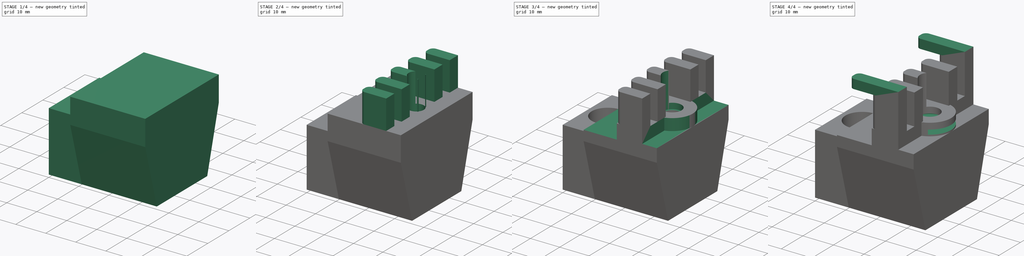
[diagram: build sequence overview — one tinted view per stage of 4, left to right]
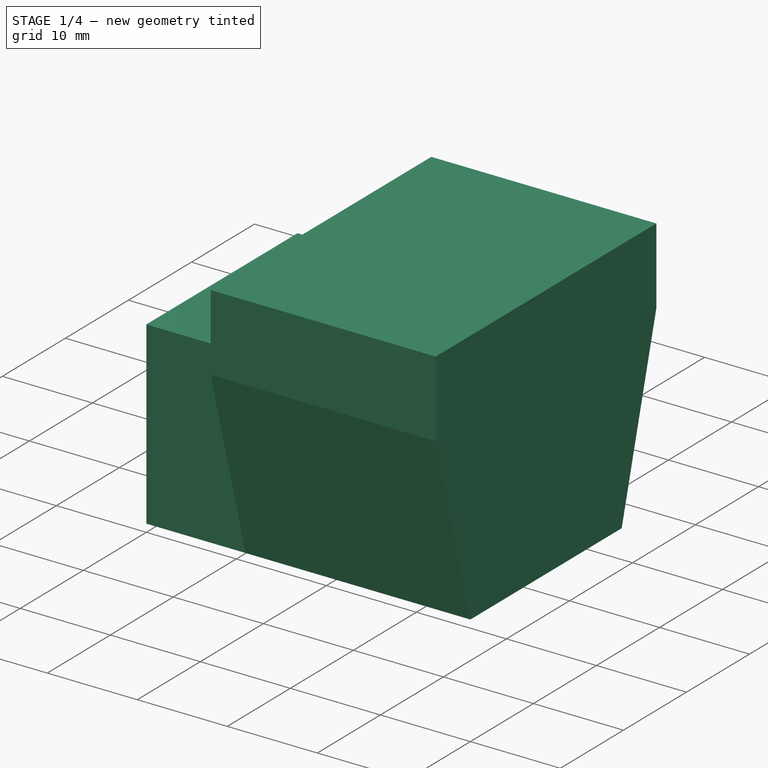
[diagram: stage 1 of 4 — iso view after this stage's code; geometry added in this stage tinted green]
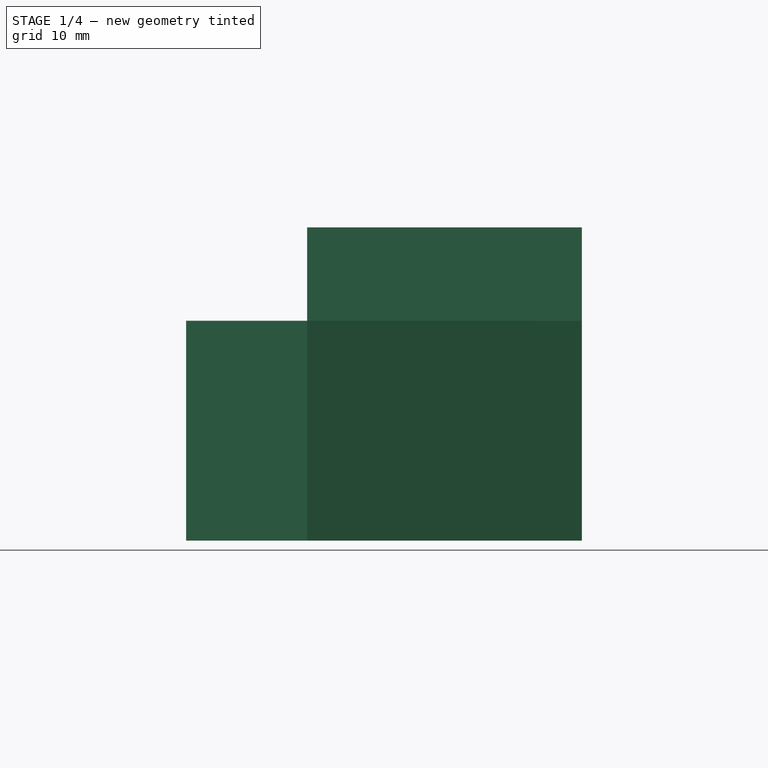
[diagram: stage 1 of 4 — front view after this stage's code; geometry added in this stage tinted green]
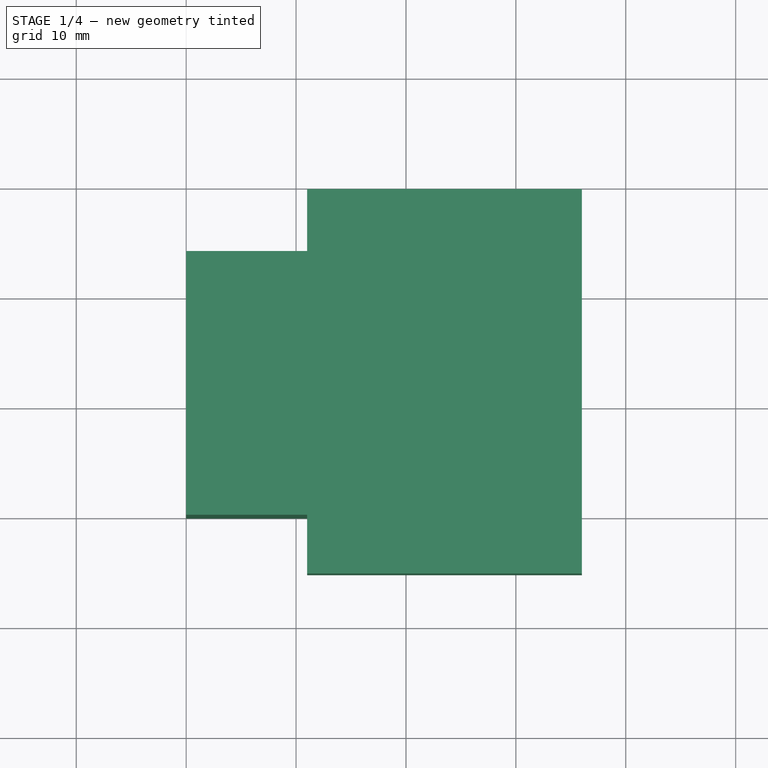
[diagram: stage 1 of 4 — top view after this stage's code; geometry added in this stage tinted green]
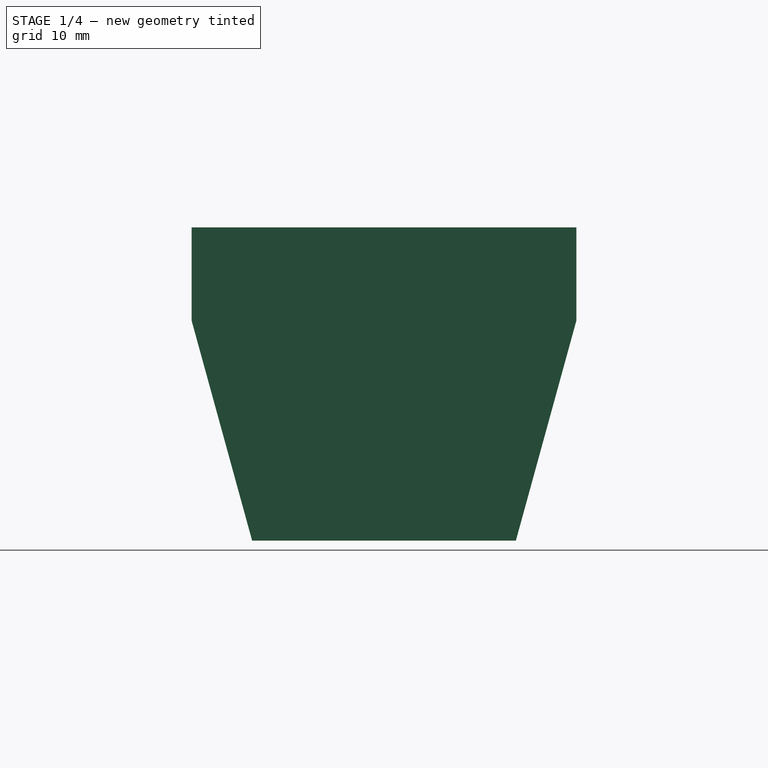
[diagram: stage 1 of 4 — right view after this stage's code; geometry added in this stage tinted green]
FCSTD DOCUMENT  (FreeCAD 1.0R)
Label: badminton_racket_stringing_holder
License: All rights reserved
LicenseURL: https://en.wikipedia.org/wiki/All_rights_reserved
objects: Sketcher::SketchObject×10, PartDesign::Pocket×6, PartDesign::Pad×4, PartDesign::Body×1
note: 51 computed .brp shape members not serialized (recipe doc carries the construction recipe); baked Part::Feature solids carry a one-line shape summary decoded from their .brp

FEATURE [Sketcher::SketchObject] Sketch
  ArcFitTolerance = 1e-06
  AttachmentSupport = -> [XY_Plane]
  FullyConstrained = true
  MakeInternals = false
  MapMode = 5
  sketch-geometry (4):
    g0: LineSegment StartX=0 StartY=0 StartZ=0 EndX=36 EndY=0 EndZ=0
    g1: LineSegment StartX=36 StartY=0 StartZ=0 EndX=36 EndY=24 EndZ=0
    g2: LineSegment StartX=36 StartY=24 StartZ=0 EndX=0 EndY=24 EndZ=0
    g3: LineSegment StartX=0 StartY=24 StartZ=0 EndX=0 EndY=0 EndZ=0
  constraints (11):
    c: Coincident(g0,g1)
    c: Coincident(g1,g2)
    c: Coincident(g2,g3)
    c: Coincident(g3,g0)
    c: Horizontal(g0)
    c: Horizontal(g2)
    c: Vertical(g1)
    c: Vertical(g3)
    c: Coincident(g0,g-1)
    c: DistanceX(g2,g2) = 36
    c: DistanceY(g1,g1) = 24
FEATURE [PartDesign::Pad] Pad
  Direction = (0,0,1)
  Length = 20
  Length2 = 10
  Profile = -> Sketch
  ReferenceAxis = -> Sketch [N_Axis]
  Refine = true
  Suppressed = false
  Type = 0
FEATURE [Sketcher::SketchObject] Sketch001
  ArcFitTolerance = 1e-06
  AttachmentSupport = -> [Pad]
  ExternalGeometry = -> [Pad]
  FullyConstrained = true
  MakeInternals = false
  MapMode = 5
  Placement = pos=(36,0,0) rot=(0.57735,0.57735,0.57735;2.0944rad)
  sketch-geometry (10):
    g0: LineSegment StartX=0 StartY=0 StartZ=0 EndX=-5.5 EndY=20 EndZ=0
    g1: LineSegment StartX=-5.5 StartY=20 StartZ=0 EndX=-5.5 EndY=28.5 EndZ=0
    g2: LineSegment StartX=-5.5 StartY=28.5 StartZ=0 EndX=29.5 EndY=28.5 EndZ=0
    g3: LineSegment StartX=29.5 StartY=28.5 StartZ=0 EndX=29.5 EndY=20 EndZ=0
    g4: LineSegment StartX=29.5 StartY=20 StartZ=0 EndX=24 EndY=0 EndZ=0
    g5: LineSegment StartX=24 StartY=0 StartZ=0 EndX=24 EndY=20 EndZ=0
    g6: LineSegment StartX=24 StartY=20 StartZ=0 EndX=0 EndY=20 EndZ=0
    g7: LineSegment StartX=0 StartY=20 StartZ=0 EndX=0 EndY=0 EndZ=0
    g8: LineSegment [constr] StartX=0 StartY=20 StartZ=0 EndX=-5.5 EndY=20 EndZ=0
    g9: LineSegment [constr] StartX=24 StartY=20 StartZ=0 EndX=29.5 EndY=20 EndZ=0
  constraints (25):
    c: Coincident(g0,g-1)
    c: Coincident(g0,g1)
    c: Vertical(g1)
    c: Coincident(g1,g2)
    c: Horizontal(g2)
    c: Coincident(g2,g3)
    c: Vertical(g3)
    c: Coincident(g3,g4)
    c: Coincident(g4,g-3)
    c: Coincident(g4,g5)
    c: Coincident(g5,g-4)
    c: Coincident(g5,g6)
    c: PointOnObject(g6,g-2)
    c: Horizontal(g6)
    c: Coincident(g6,g7)
    c: Coincident(g7,g0)
    c: Coincident(g8,g6)
    c: Coincident(g8,g0)
    c: Horizontal(g8)
    c: Coincident(g3,g9)
    c: Horizontal(g9)
    c: Equal(g9,g8)
    c: DistanceX(g2,g2) = 35
    c: DistanceY(g3,g3) = 8.5
    c: Coincident(g5,g9)
FEATURE [PartDesign::Pad] Pad001
  BaseFeature = -> Pad
  Direction = (1,0,0)
  Length = 25
  Length2 = 10
  Profile = -> Sketch001
  ReferenceAxis = -> Sketch001 [N_Axis]
  Refine = true
  Reversed = true
  Suppressed = false
  Type = 0
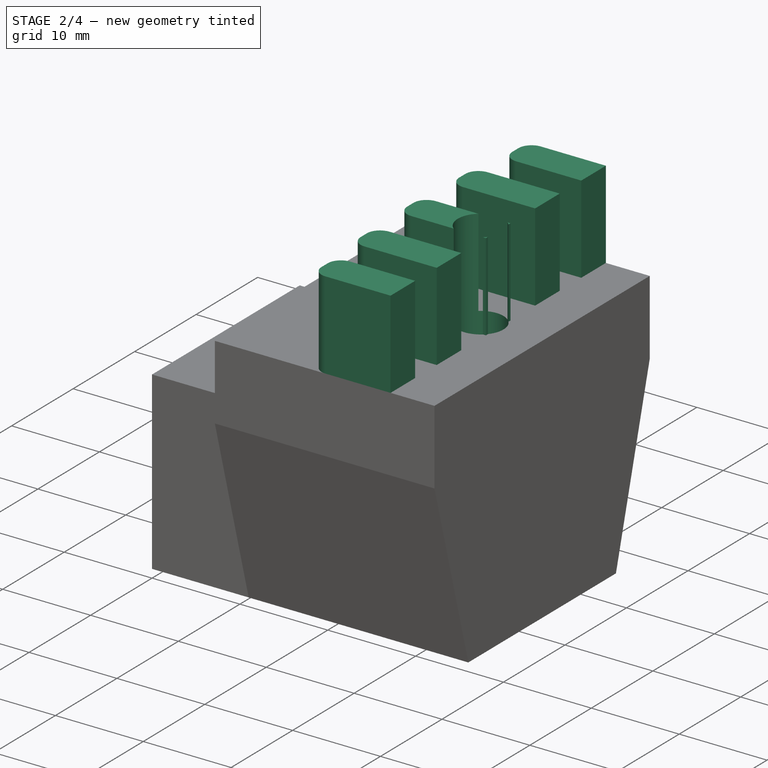
[diagram: stage 2 of 4 — iso view after this stage's code; geometry added in this stage tinted green]
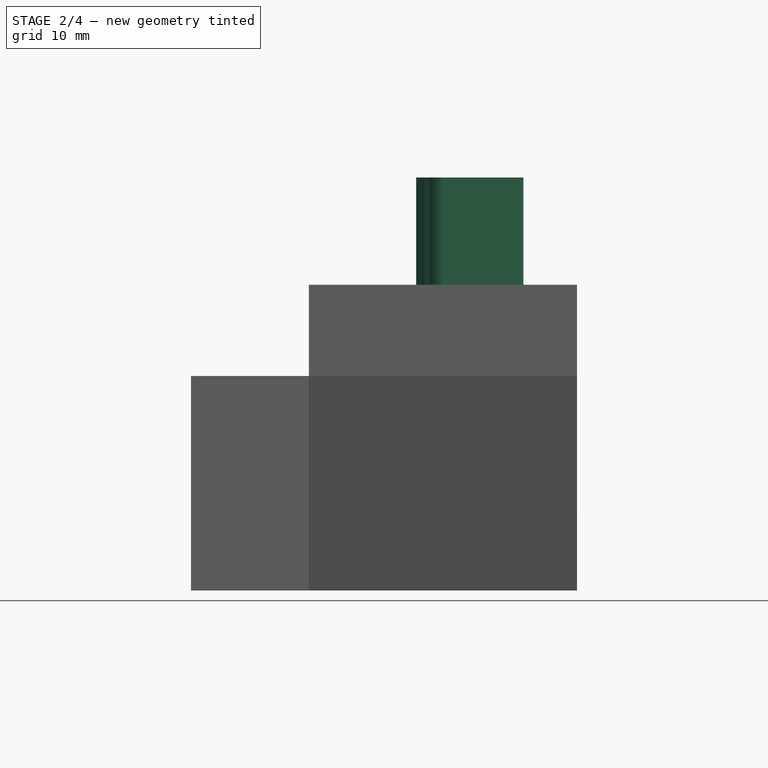
[diagram: stage 2 of 4 — front view after this stage's code; geometry added in this stage tinted green]
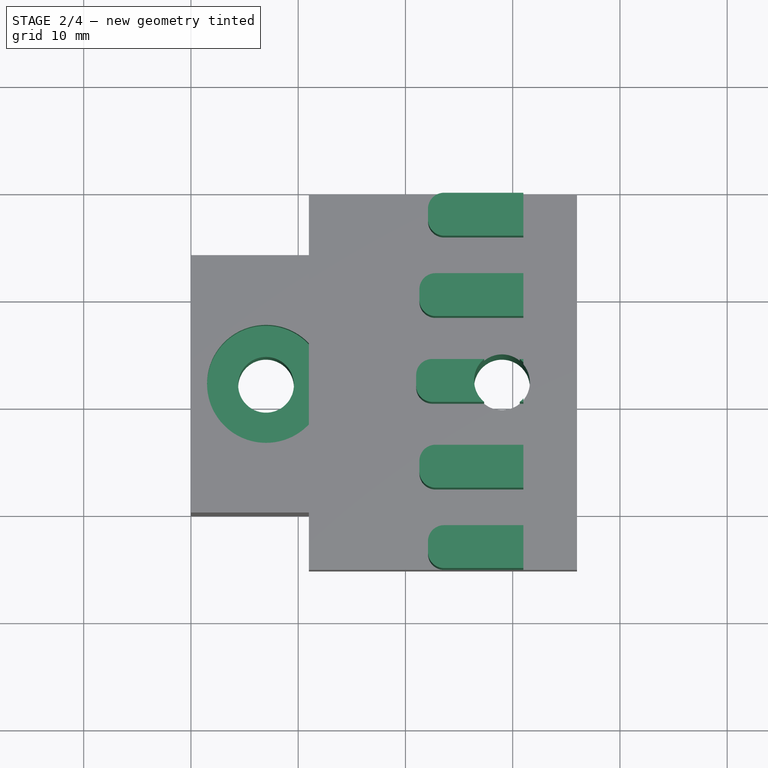
[diagram: stage 2 of 4 — top view after this stage's code; geometry added in this stage tinted green]
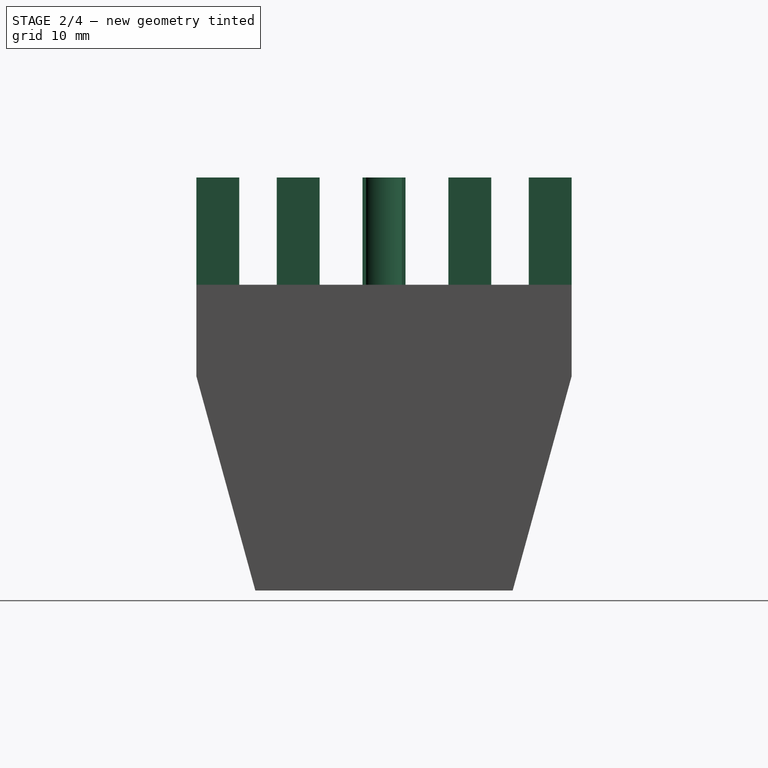
[diagram: stage 2 of 4 — right view after this stage's code; geometry added in this stage tinted green]
FEATURE [Sketcher::SketchObject] Sketch002
  ArcFitTolerance = 1e-06
  AttachmentSupport = -> [Pad001]
  ExternalGeometry = -> [Pad001]
  FullyConstrained = true
  MakeInternals = false
  MapMode = 5
  Placement = pos=(0,0,28.5) rot=(0,0,1;0rad)
  sketch-geometry (47):
    g0: LineSegment StartX=21 StartY=12.5 StartZ=0 EndX=21 EndY=11.5 EndZ=0
    g1: LineSegment StartX=22.5 StartY=10 StartZ=0 EndX=31 EndY=10 EndZ=0
    g2: LineSegment StartX=31 StartY=10 StartZ=0 EndX=31 EndY=14 EndZ=0
    g3: LineSegment StartX=31 StartY=14 StartZ=0 EndX=22.5 EndY=14 EndZ=0
    g4: ArcOfCircle CenterX=22.5 CenterY=12.5 CenterZ=0 NormalX=0 NormalY=0 NormalZ=1 AngleXU=0 Radius=1.5 StartAngle=1.5708 EndAngle=3.14159
    g5: ArcOfCircle CenterX=22.5 CenterY=11.5 CenterZ=0 NormalX=0 NormalY=0 NormalZ=1 AngleXU=0 Radius=1.5 StartAngle=3.14159 EndAngle=4.71239
    g6: GeomPoint [constr] X=21 Y=14 Z=0
    g7: GeomPoint [constr] X=31 Y=10 Z=0
    g8: LineSegment [constr] StartX=22.5 StartY=14 StartZ=0 EndX=22.5 EndY=29.5 EndZ=0
    g9: LineSegment [constr] StartX=22.5 StartY=10 StartZ=0 EndX=22.5 EndY=-5.5 EndZ=0
    g10: LineSegment StartX=21.3 StartY=20.5 StartZ=0 EndX=21.3 EndY=19.5 EndZ=0
    g11: LineSegment StartX=22.8 StartY=18 StartZ=0 EndX=31 EndY=18 EndZ=0
    g12: LineSegment StartX=31 StartY=18 StartZ=0 EndX=31 EndY=22 EndZ=0
    g13: LineSegment StartX=31 StartY=22 StartZ=0 EndX=22.8 EndY=22 EndZ=0
    g14: ArcOfCircle CenterX=22.8 CenterY=20.5 CenterZ=0 NormalX=0 NormalY=0 NormalZ=1 AngleXU=0 Radius=1.5 StartAngle=1.5708 EndAngle=3.14159
    g15: ArcOfCircle CenterX=22.8 CenterY=19.5 CenterZ=0 NormalX=0 NormalY=0 NormalZ=1 AngleXU=0 Radius=1.5 StartAngle=3.14159 EndAngle=4.71239
    g16: GeomPoint [constr] X=21.3 Y=22 Z=0
    g17: GeomPoint [constr] X=31 Y=18 Z=0
    g18: LineSegment StartX=21.3 StartY=4.5 StartZ=0 EndX=21.3 EndY=3.5 EndZ=0
    g19: LineSegment StartX=22.8 StartY=2 StartZ=0 EndX=31 EndY=2 EndZ=0
    g20: LineSegment StartX=31 StartY=2 StartZ=0 EndX=31 EndY=6 EndZ=0
    g21: LineSegment StartX=31 StartY=6 StartZ=0 EndX=22.8 EndY=6 EndZ=0
    g22: ArcOfCircle CenterX=22.8 CenterY=4.5 CenterZ=0 NormalX=0 NormalY=0 NormalZ=1 AngleXU=0 Radius=1.5 StartAngle=1.5708 EndAngle=3.14159
    g23: ArcOfCircle CenterX=22.8 CenterY=3.5 CenterZ=0 NormalX=0 NormalY=0 NormalZ=1 AngleXU=0 Radius=1.5 StartAngle=3.14159 EndAngle=4.71239
    g24: GeomPoint [constr] X=21.3 Y=6 Z=0
    g25: GeomPoint [constr] X=31 Y=2 Z=0
    g26: LineSegment StartX=22.1 StartY=28 StartZ=0 EndX=22.1 EndY=27 EndZ=0
    g27: LineSegment StartX=23.6 StartY=25.5 StartZ=0 EndX=31 EndY=25.5 EndZ=0
    g28: LineSegment StartX=31 StartY=25.5 StartZ=0 EndX=31 EndY=29.5 EndZ=0
    g29: LineSegment StartX=31 StartY=29.5 StartZ=0 EndX=23.6 EndY=29.5 EndZ=0
    g30: ArcOfCircle CenterX=23.6 CenterY=28 CenterZ=0 NormalX=0 NormalY=0 NormalZ=1 AngleXU=0 Radius=1.5 StartAngle=1.5708 EndAngle=3.14159
    g31: ArcOfCircle CenterX=23.6 CenterY=27 CenterZ=0 NormalX=0 NormalY=0 NormalZ=1 AngleXU=0 Radius=1.5 StartAngle=3.14159 EndAngle=4.71239
    g32: GeomPoint [constr] X=22.1 Y=29.5 Z=0
    g33: GeomPoint [constr] X=31 Y=25.5 Z=0
    g34: LineSegment StartX=22.1 StartY=-3 StartZ=0 EndX=22.1 EndY=-4 EndZ=0
    g35: LineSegment StartX=23.6 StartY=-5.5 StartZ=0 EndX=31 EndY=-5.5 EndZ=0
    g36: LineSegment StartX=31 StartY=-5.5 StartZ=0 EndX=31 EndY=-1.5 EndZ=0
    g37: LineSegment StartX=31 StartY=-1.5 StartZ=0 EndX=23.6 EndY=-1.5 EndZ=0
    g38: ArcOfCircle CenterX=23.6 CenterY=-3 CenterZ=0 NormalX=0 NormalY=0 NormalZ=1 AngleXU=0 Radius=1.5 StartAngle=1.5708 EndAngle=3.14159
    g39: ArcOfCircle CenterX=23.6 CenterY=-4 CenterZ=0 NormalX=0 NormalY=0 NormalZ=1 AngleXU=0 Radius=1.5 StartAngle=3.14159 EndAngle=4.71239
    g40: GeomPoint [constr] X=22.1 Y=-1.5 Z=0
    g41: GeomPoint [constr] X=31 Y=-5.5 Z=0
    g42: LineSegment [constr] StartX=31 StartY=2 StartZ=0 EndX=31 EndY=-1.5 EndZ=0
    g43: LineSegment [constr] StartX=31 StartY=25.5 StartZ=0 EndX=36 EndY=25.5 EndZ=0
    g44: LineSegment [constr] StartX=31 StartY=18 StartZ=0 EndX=31 EndY=14 EndZ=0
    g45: LineSegment [constr] StartX=31 StartY=10 StartZ=0 EndX=31 EndY=6 EndZ=0
    g46: LineSegment [constr] StartX=31 StartY=25.5 StartZ=0 EndX=31 EndY=22 EndZ=0
  constraints (117):
    c: Tangent(g0,g4) = -1.5708
    c: Tangent(g0,g5) = -1.5708
    c: Tangent(g1,g5) = -1.5708
    c: Tangent(g3,g4) = -1.5708
    c: Vertical(g0)
    c: Vertical(g2)
    c: Horizontal(g1)
    c: Horizontal(g3)
    c: Equal(g4,g5)
    c: PointOnObject(g6,g0)
    c: PointOnObject(g6,g3)
    c: PointOnObject(g7,g1)
    c: PointOnObject(g7,g2)
    c: Distance(g1,g3) = 4
    c: Radius(g5) = 1.5
    c: Distance(g-3,g0) = 15
    c: Coincident(g8,g3)
    c: PointOnObject(g8,g-4)
    c: Vertical(g8)
    c: Coincident(g9,g1)
    c: PointOnObject(g9,g-5)
    c: Vertical(g9)
    c: Equal(g8,g9)
    c: Tangent(g10,g14) = -1.5708
    c: Tangent(g10,g15) = -1.5708
    c: Tangent(g11,g15) = -1.5708
    c: Tangent(g13,g14) = -1.5708
    c: Vertical(g10)
    c: Vertical(g12)
    c: Horizontal(g11)
    c: Horizontal(g13)
    c: Equal(g14,g15)
    c: PointOnObject(g16,g10)
    c: PointOnObject(g16,g13)
    c: PointOnObject(g17,g11)
    c: PointOnObject(g17,g12)
    c: Distance(g11,g13) = 4
    c: Radius(g15) = 1.5
    c: Tangent(g18,g22) = -1.5708
    c: Tangent(g18,g23) = -1.5708
    c: Tangent(g19,g23) = -1.5708
    c: Tangent(g21,g22) = -1.5708
    c: Vertical(g18)
    c: Vertical(g20)
    c: Horizontal(g19)
    c: Horizontal(g21)
    c: Equal(g22,g23)
    c: PointOnObject(g24,g18)
    c: PointOnObject(g24,g21)
    c: PointOnObject(g25,g19)
    c: PointOnObject(g25,g20)
    c: Distance(g19,g21) = 4
    c: Radius(g23) = 1.5
    c: Tangent(g26,g30) = -1.5708
    c: Tangent(g26,g31) = -1.5708
    c: Tangent(g27,g31) = -1.5708
    c: Tangent(g29,g30) = -1.5708
    c: Vertical(g26)
    c: Vertical(g28)
    c: Horizontal(g27)
    c: Horizontal(g29)
    c: Equal(g30,g31)
    c: PointOnObject(g32,g26)
    c: PointOnObject(g32,g29)
    c: PointOnObject(g33,g27)
    c: PointOnObject(g33,g28)
    c: Distance(g27,g29) = 4
    c: Radius(g31) = 1.5
    c: Tangent(g34,g38) = -1.5708
    c: Tangent(g34,g39) = -1.5708
    c: Tangent(g35,g39) = -1.5708
    c: Tangent(g37,g38) = -1.5708
    c: Vertical(g34)
    c: Vertical(g36)
    c: Horizontal(g35)
    c: Horizontal(g37)
    c: Equal(g38,g39)
    c: PointOnObject(g40,g34)
    c: PointOnObject(g40,g37)
    c: PointOnObject(g41,g35)
    c: PointOnObject(g41,g36)
    c: Distance(g35,g37) = 4
    c: Radius(g39) = 1.5
    c: Distance(g11,g3) = 4
    c: Distance(g21,g1) = 4
    c: Distance(g37,g19) = 3.5
    c: Distance(g27,g13) = 3.5
    c: Distance(g-3,g10) = 14.7
    c: Distance(g-3,g26) = 13.9
    c: Distance(g-3,g18) = 14.7
    c: Distance(g-3,g34) = 13.9
    c: Coincident(g3,g2)
    c: Coincident(g1,g2)
    c: Coincident(g21,g20)
    c: Coincident(g20,g19)
    c: Coincident(g37,g36)
    c: Coincident(g35,g36)
    c: Coincident(g12,g13)
    c: Coincident(g12,g11)
    c: Coincident(g29,g28)
    c: Coincident(g27,g28)
    c: Coincident(g42,g25)
    c: Coincident(g42,g36)
    c: Vertical(g42)
    c: Coincident(g43,g27)
    c: PointOnObject(g43,g-3)
    c: Horizontal(g43)
    c: Coincident(g44,g17)
    c: Coincident(g44,g2)
    c: Vertical(g44)
    c: Coincident(g45,g7)
    c: Coincident(g45,g20)
    c: Vertical(g45)
    c: Coincident(g46,g33)
    c: Coincident(g46,g12)
    c: Vertical(g46)
    c: Distance(g-3,g28) = 5
FEATURE [PartDesign::Pad] Pad002
  BaseFeature = -> Pad001
  Direction = (0,0,1)
  Length = 10
  Length2 = 10
  Profile = -> Sketch002
  ReferenceAxis = -> Sketch002 [N_Axis]
  Refine = true
  Suppressed = false
  Type = 0
FEATURE [Sketcher::SketchObject] Sketch003
  ArcFitTolerance = 1e-06
  AttachmentSupport = -> [Pad002]
  ExternalGeometry = -> [Pad002]
  FullyConstrained = true
  MakeInternals = false
  MapMode = 5
  Placement = pos=(0,0,0) rot=(1,0,0;3.14159rad)
  sketch-geometry (6):
    g0: LineSegment [constr] StartX=0 StartY=-24 StartZ=0 EndX=18 EndY=-12 EndZ=0
    g1: LineSegment [constr] StartX=18 StartY=-12 StartZ=0 EndX=36 EndY=-3.6e-15 EndZ=0
    g2: Circle CenterX=7 CenterY=-12 CenterZ=0 NormalX=0 NormalY=0 NormalZ=1 AngleXU=0 Radius=2.6
    g3: Circle CenterX=29 CenterY=-12 CenterZ=0 NormalX=0 NormalY=0 NormalZ=1 AngleXU=0 Radius=2.6
    g4: LineSegment [constr] StartX=7 StartY=-12 StartZ=0 EndX=18 EndY=-12 EndZ=0
    g5: LineSegment [constr] StartX=29 StartY=-12 StartZ=0 EndX=18 EndY=-12 EndZ=0
  constraints (15):
    c: Coincident(g0,g-4)
    c: Coincident(g1,g0)
    c: Coincident(g1,g-3)
    c: Equal(g1,g0)
    c: Parallel(g0,g1)
    c: Coincident(g4,g2)
    c: Coincident(g4,g0)
    c: Horizontal(g4)
    c: Coincident(g5,g3)
    c: Coincident(g5,g0)
    c: Horizontal(g5)
    c: Equal(g4,g5)
    c: Equal(g3,g2)
    c: DistanceX(g2,g3) = 22
    c: Diameter(g2) = 5.2
FEATURE [PartDesign::Pocket] Pocket
  BaseFeature = -> Pad002
  Direction = (0,0,1)
  Length = 5
  Length2 = 5
  Profile = -> Sketch003
  ReferenceAxis = -> Sketch003 [N_Axis]
  Refine = true
  Suppressed = false
  Type = 1
FEATURE [Sketcher::SketchObject] Sketch004
  ArcFitTolerance = 1e-06
  AttachmentSupport = -> [Pocket]
  ExternalGeometry = -> [Pocket]
  FullyConstrained = true
  MakeInternals = false
  MapMode = 5
  Placement = pos=(0,0,20) rot=(0,0,1;0rad)
  sketch-geometry (1):
    g0: Circle CenterX=7 CenterY=12 CenterZ=0 NormalX=0 NormalY=0 NormalZ=1 AngleXU=0 Radius=5.5
  constraints (2):
    c: Coincident(g0,g-3)
    c: Diameter(g0) = 11
FEATURE [PartDesign::Pocket] Pocket001
  BaseFeature = -> Pocket
  Direction = (0,0,-1)
  Length = 5
  Length2 = 5
  Profile = -> Sketch004
  ReferenceAxis = -> Sketch004 [N_Axis]
  Refine = true
  Suppressed = false
  Type = 0
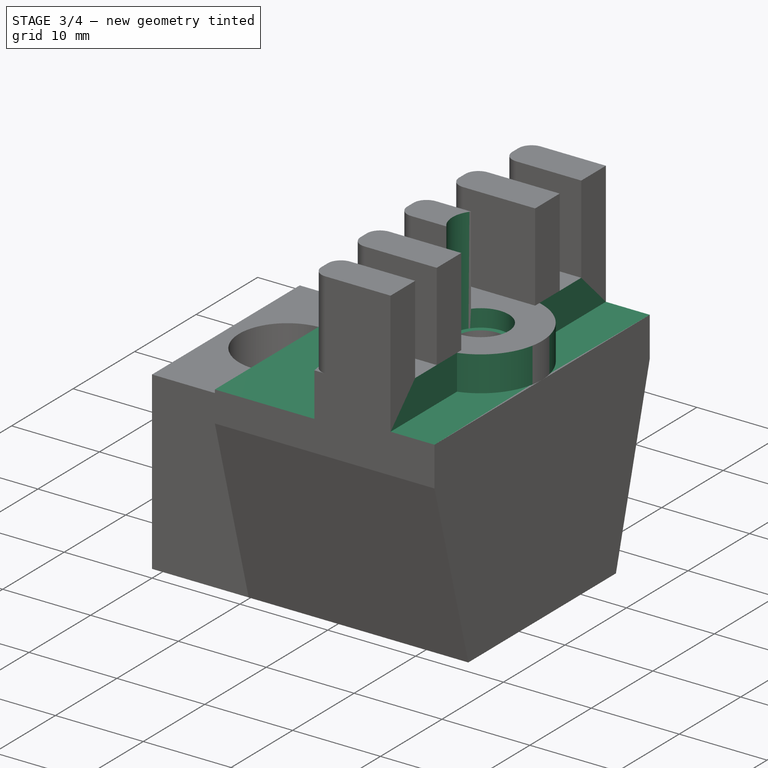
[diagram: stage 3 of 4 — iso view after this stage's code; geometry added in this stage tinted green]
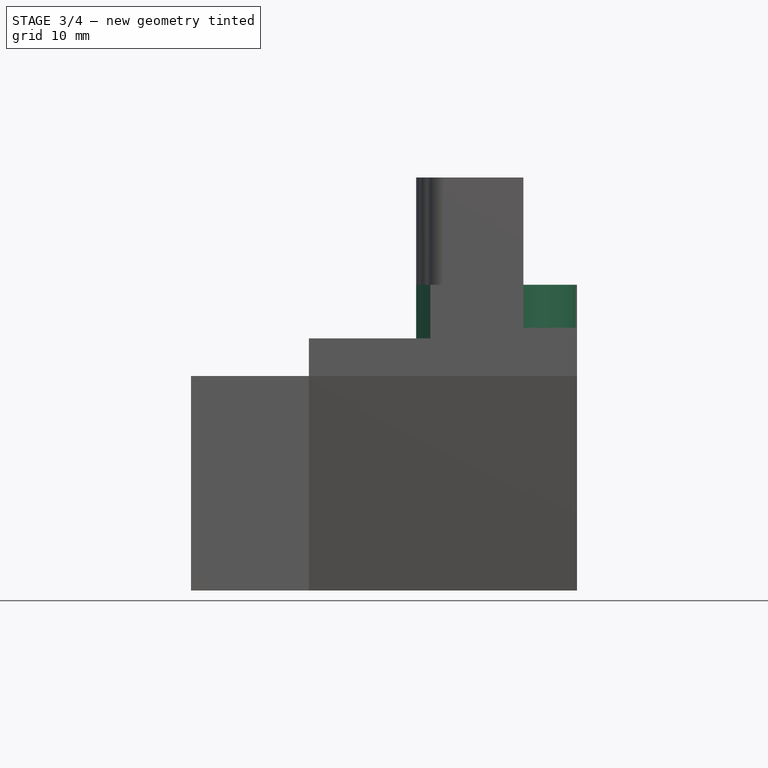
[diagram: stage 3 of 4 — front view after this stage's code; geometry added in this stage tinted green]
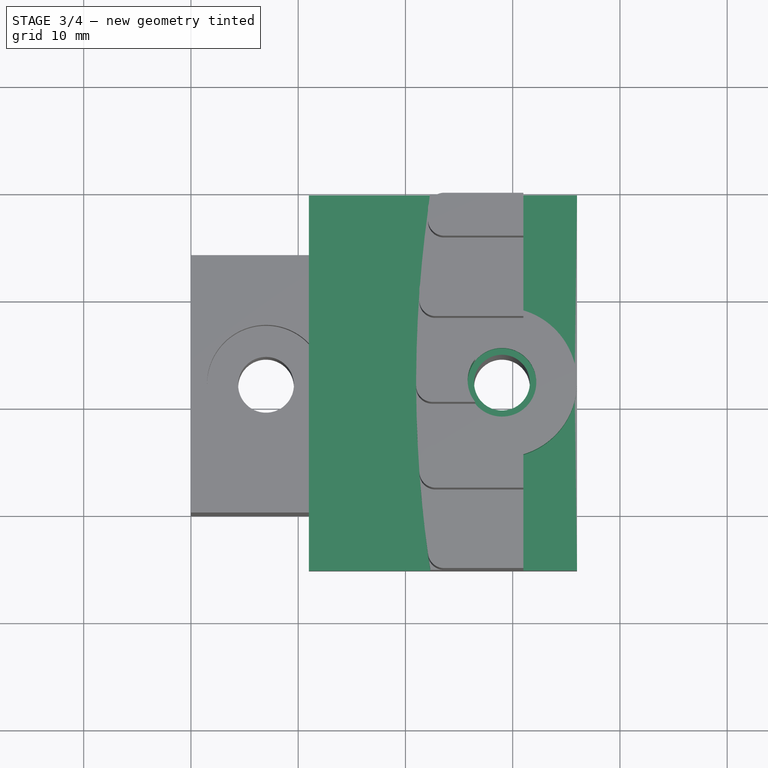
[diagram: stage 3 of 4 — top view after this stage's code; geometry added in this stage tinted green]
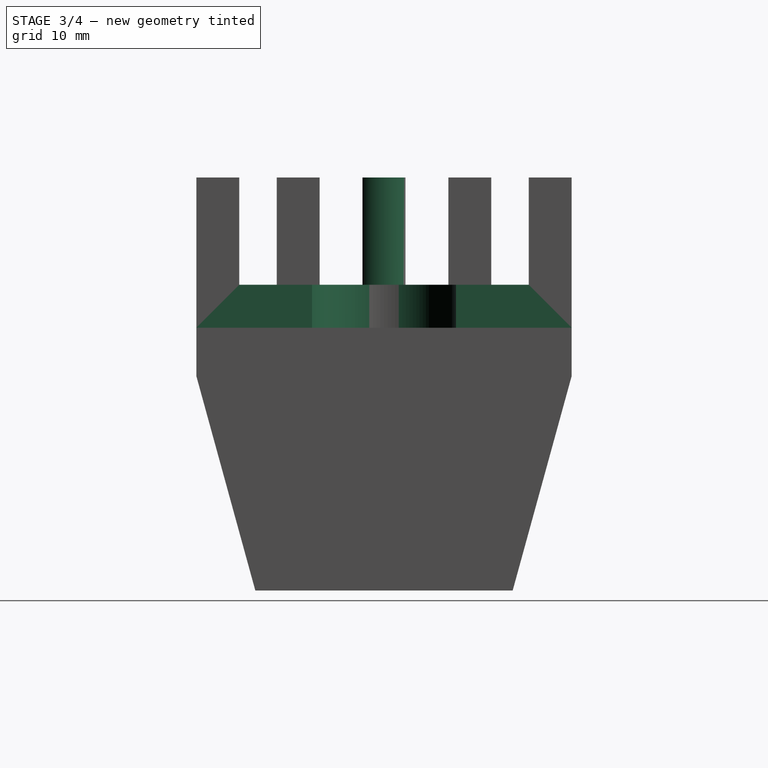
[diagram: stage 3 of 4 — right view after this stage's code; geometry added in this stage tinted green]
FEATURE [Sketcher::SketchObject] Sketch005
  ArcFitTolerance = 1e-06
  AttachmentSupport = -> [Pocket001]
  FullyConstrained = true
  MakeInternals = false
  MapMode = 5
  Placement = pos=(0,0,38.5) rot=(0,0,1;0rad)
  sketch-geometry (1):
    g0: Circle CenterX=29 CenterY=12 CenterZ=0 NormalX=0 NormalY=0 NormalZ=1 AngleXU=0 Radius=3.2
  constraints (2):
    c: Coincident(g0,g-3)
    c: Diameter(g0) = 6.4
FEATURE [PartDesign::Pocket] Pocket002
  BaseFeature = -> Pocket001
  Direction = (0,0,-1)
  Length = 12
  Length2 = 5
  Profile = -> Sketch005
  ReferenceAxis = -> Sketch005 [N_Axis]
  Refine = true
  Suppressed = false
  Type = 0
FEATURE [Sketcher::SketchObject] Sketch006
  ArcFitTolerance = 1e-06
  AttachmentSupport = -> [Pocket002]
  ExternalGeometry = -> [Pocket002]
  FullyConstrained = false
  MakeInternals = false
  MapMode = 5
  Placement = pos=(0,0,28.5) rot=(0,0,1;0rad)
  sketch-geometry (8):
    g0: LineSegment StartX=22.2806 StartY=29.5 StartZ=0 EndX=11 EndY=29.5 EndZ=0
    g1: LineSegment StartX=11 StartY=29.5 StartZ=0 EndX=11 EndY=-5.5 EndZ=0
    g2: LineSegment StartX=11 StartY=-5.5 StartZ=0 EndX=22.3295 EndY=-5.5 EndZ=0
    g3: LineSegment [constr] StartX=21 StartY=12.5 StartZ=0 EndX=21 EndY=12 EndZ=0
    g4: LineSegment [constr] StartX=21 StartY=11.5 StartZ=0 EndX=21 EndY=12 EndZ=0
    g5: ArcOfCircle CenterX=137.914 CenterY=12 CenterZ=0 NormalX=0 NormalY=0 NormalZ=1 AngleXU=0 Radius=116.914 StartAngle=3.00431 EndAngle=3.27888
    g6: LineSegment StartX=22.1 StartY=-4 StartZ=0 EndX=22.3295 EndY=-5.5 EndZ=0
    g7: LineSegment StartX=22.1 StartY=28 StartZ=0 EndX=22.2806 EndY=29.5 EndZ=0
  constraints (18):
    c: PointOnObject(g2,g-12)
    c: PointOnObject(g0,g-13)
    c: Coincident(g0,g-13)
    c: Coincident(g1,g0)
    c: Coincident(g1,g-12)
    c: Coincident(g2,g1)
    c: Coincident(g3,g-9)
    c: Coincident(g4,g-9)
    c: Coincident(g4,g3)
    c: Equal(g4,g3)
    c: PointOnObject(g3,g-9)
    c: Coincident(g5,g-8)
    c: Coincident(g5,g-11)
    c: PointOnObject(g3,g5)
    c: Coincident(g6,g5)
    c: Coincident(g6,g2)
    c: Coincident(g7,g5)
    c: Coincident(g7,g0)
FEATURE [PartDesign::Pocket] Pocket003
  BaseFeature = -> Pocket002
  Direction = (0,0,-1)
  Length = 5
  Length2 = 5
  Profile = -> Sketch006
  ReferenceAxis = -> Sketch006 [N_Axis]
  Refine = true
  Suppressed = false
  Type = 0
FEATURE [Sketcher::SketchObject] Sketch007
  ArcFitTolerance = 1e-06
  AttachmentSupport = -> [Pocket003]
  ExternalGeometry = -> [Pocket003]
  FullyConstrained = true
  MakeInternals = false
  MapMode = 5
  Placement = pos=(0,0,28.5) rot=(0,0,1;0rad)
  sketch-geometry (7):
    g0: LineSegment StartX=31 StartY=29.5 StartZ=0 EndX=36 EndY=29.5 EndZ=0
    g1: LineSegment StartX=36 StartY=-5.5 StartZ=0 EndX=31 EndY=-5.5 EndZ=0
    g2: LineSegment StartX=36 StartY=29.5 StartZ=0 EndX=36 EndY=12 EndZ=0
    g3: LineSegment StartX=36 StartY=-5.5 StartZ=0 EndX=36 EndY=12 EndZ=0
    g4: ArcOfCircle CenterX=29 CenterY=12 CenterZ=0 NormalX=0 NormalY=0 NormalZ=1 AngleXU=0 Radius=7 StartAngle=5.00214 EndAngle=7.56423
    g5: LineSegment StartX=31 StartY=18.7082 StartZ=0 EndX=31 EndY=29.5 EndZ=0
    g6: LineSegment StartX=31 StartY=5.2918 StartZ=0 EndX=31 EndY=-5.5 EndZ=0
  constraints (17):
    c: Coincident(g0,g-7)
    c: Coincident(g1,g-5)
    c: Coincident(g2,g0)
    c: Coincident(g3,g1)
    c: Coincident(g3,g2)
    c: Coincident(g4,g-8)
    c: Equal(g2,g3)
    c: Coincident(g1,g-7)
    c: PointOnObject(g2,g4)
    c: Coincident(g5,g4)
    c: Coincident(g5,g0)
    c: Coincident(g6,g4)
    c: Coincident(g6,g1)
    c: Vertical(g2)
    c: Coincident(g-3,g0)
    c: Vertical(g5)
    c: Vertical(g6)
FEATURE [PartDesign::Pocket] Pocket004
  BaseFeature = -> Pocket003
  Direction = (0,0,-1)
  Length = 4
  Length2 = 5
  Profile = -> Sketch007
  ReferenceAxis = -> Sketch007 [N_Axis]
  Refine = true
  Suppressed = false
  Type = 0
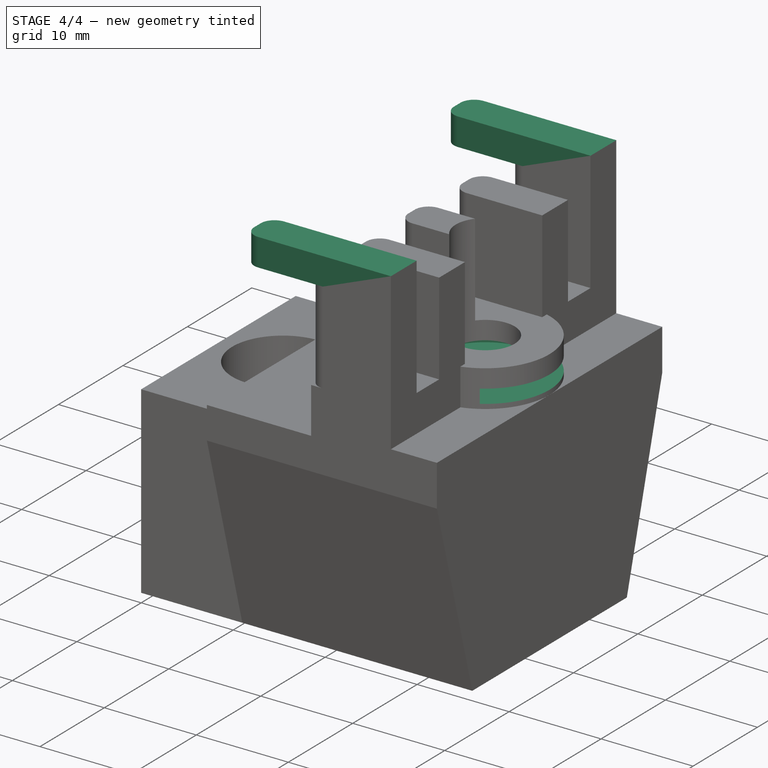
[diagram: stage 4 of 4 — iso view after this stage's code; geometry added in this stage tinted green]
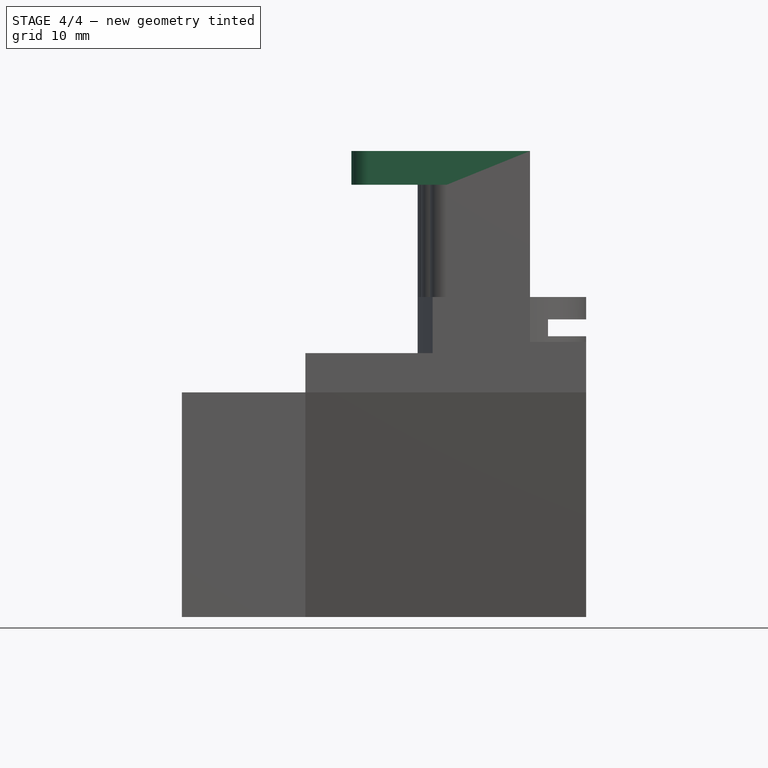
[diagram: stage 4 of 4 — front view after this stage's code; geometry added in this stage tinted green]
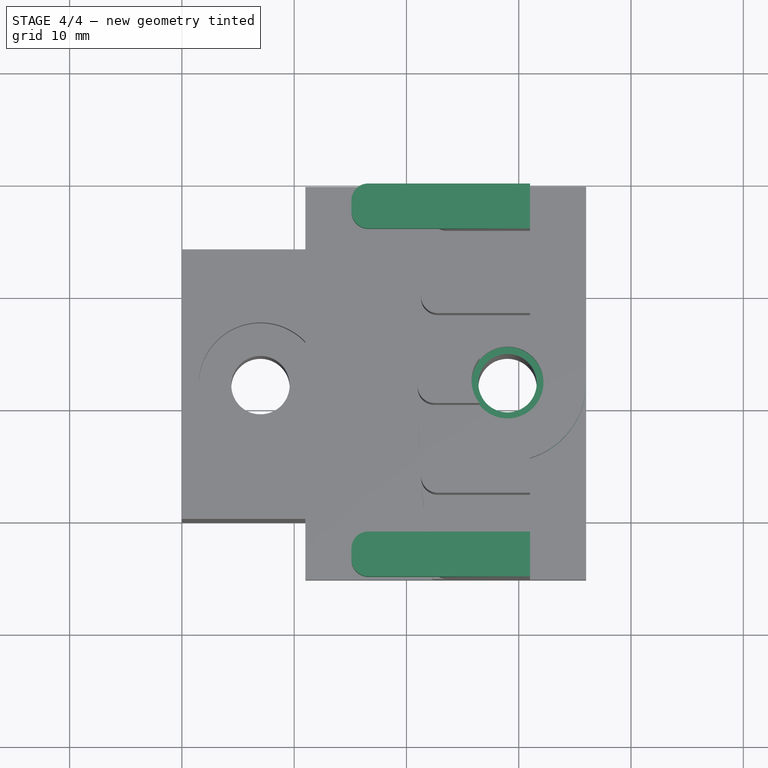
[diagram: stage 4 of 4 — top view after this stage's code; geometry added in this stage tinted green]
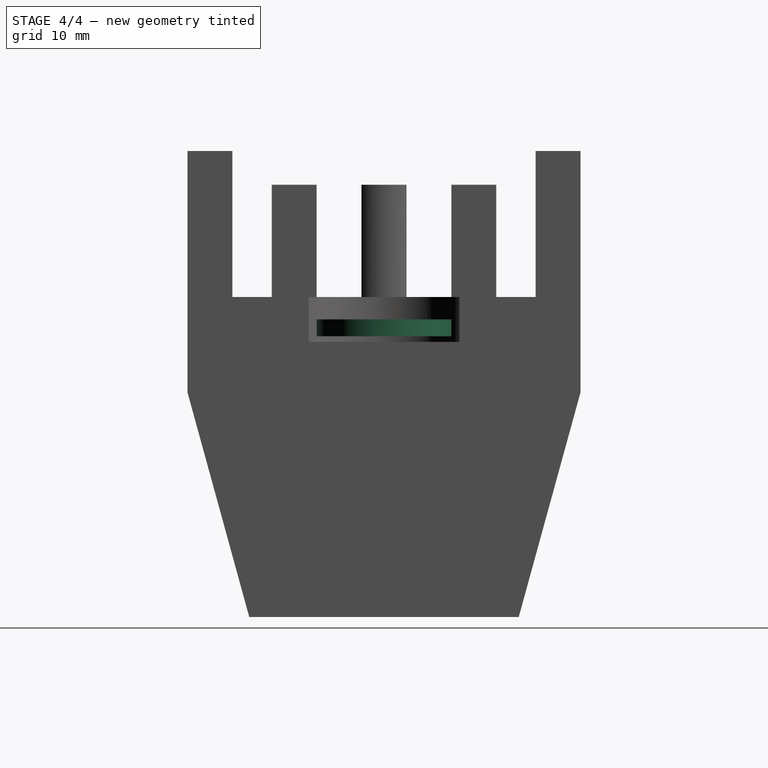
[diagram: stage 4 of 4 — right view after this stage's code; geometry added in this stage tinted green]
FEATURE [Sketcher::SketchObject] Sketch008
  ArcFitTolerance = 1e-06
  AttachmentSupport = -> [Pocket004]
  ExternalGeometry = -> [Pocket004]
  FullyConstrained = true
  MakeInternals = false
  MapMode = 5
  Placement = pos=(0,0,38.5) rot=(0,0,1;0rad)
  sketch-geometry (16):
    g0: LineSegment StartX=31 StartY=29.5 StartZ=0 EndX=16.6 EndY=29.5 EndZ=0
    g1: LineSegment StartX=15.1 StartY=28 StartZ=0 EndX=15.1 EndY=27 EndZ=0
    g2: LineSegment StartX=16.6 StartY=25.5 StartZ=0 EndX=31 EndY=25.5 EndZ=0
    g3: ArcOfCircle CenterX=16.6 CenterY=28 CenterZ=0 NormalX=0 NormalY=0 NormalZ=1 AngleXU=0 Radius=1.5 StartAngle=1.5708 EndAngle=3.14159
    g4: ArcOfCircle CenterX=16.6 CenterY=27 CenterZ=0 NormalX=0 NormalY=0 NormalZ=1 AngleXU=0 Radius=1.5 StartAngle=3.14159 EndAngle=4.71239
    g5: GeomPoint [constr] X=31 Y=29.5 Z=0
    g6: GeomPoint [constr] X=15.1 Y=25.5 Z=0
    g7: LineSegment StartX=31 StartY=25.5 StartZ=0 EndX=31 EndY=29.5 EndZ=0
    g8: LineSegment StartX=31 StartY=-1.5 StartZ=0 EndX=16.6 EndY=-1.5 EndZ=0
    g9: LineSegment StartX=15.1 StartY=-3 StartZ=0 EndX=15.1 EndY=-4 EndZ=0
    g10: LineSegment StartX=16.6 StartY=-5.5 StartZ=0 EndX=31 EndY=-5.5 EndZ=0
    g11: LineSegment StartX=31 StartY=-5.5 StartZ=0 EndX=31 EndY=-1.5 EndZ=0
    g12: ArcOfCircle CenterX=16.6 CenterY=-3 CenterZ=0 NormalX=0 NormalY=0 NormalZ=1 AngleXU=0 Radius=1.5 StartAngle=1.5708 EndAngle=3.14159
    g13: ArcOfCircle CenterX=16.6 CenterY=-4 CenterZ=0 NormalX=0 NormalY=0 NormalZ=1 AngleXU=0 Radius=1.5 StartAngle=3.14159 EndAngle=4.71239
    g14: GeomPoint [constr] X=15.1 Y=-5.5 Z=0
    g15: LineSegment [constr] StartX=15.1 StartY=27 StartZ=0 EndX=15.1 EndY=-3 EndZ=0
  constraints (35):
    c: Tangent(g0,g3) = -1.5708
    c: Tangent(g1,g3) = -1.5708
    c: Tangent(g1,g4) = -1.5708
    c: Tangent(g2,g4) = -1.5708
    c: Horizontal(g0)
    c: Horizontal(g2)
    c: Vertical(g1)
    c: Equal(g3,g4)
    c: PointOnObject(g6,g1)
    c: PointOnObject(g6,g2)
    c: Radius(g3) = 1.5
    c: Coincident(g7,g2)
    c: Coincident(g0,g7)
    c: Coincident(g0,g5)
    c: Coincident(g0,g-3)
    c: Coincident(g-3,g2)
    c: Tangent(g8,g12) = -1.5708
    c: Tangent(g9,g12) = -1.5708
    c: Tangent(g9,g13) = -1.5708
    c: Tangent(g10,g13) = -1.5708
    c: Horizontal(g8)
    c: Horizontal(g10)
    c: Vertical(g9)
    c: Equal(g12,g13)
    c: PointOnObject(g14,g9)
    c: PointOnObject(g14,g10)
    c: Radius(g12) = 1.5
    c: Coincident(g11,g8)
    c: Coincident(g11,g10)
    c: Coincident(g10,g-5)
    c: Coincident(g8,g-5)
    c: Coincident(g15,g1)
    c: Coincident(g15,g9)
    c: Vertical(g15)
    c: Distance(g-6,g1) = 7
FEATURE [PartDesign::Pad] Pad003
  BaseFeature = -> Pocket004
  Direction = (0,0,1)
  Length = 3
  Length2 = 10
  Profile = -> Sketch008
  ReferenceAxis = -> Sketch008 [N_Axis]
  Refine = true
  Suppressed = false
  Type = 0
FEATURE [Sketcher::SketchObject] Sketch009
  ArcFitTolerance = 1e-06
  AttachmentSupport = -> [Pad003]
  ExternalGeometry = -> [Pad003]
  FullyConstrained = true
  MakeInternals = false
  MapMode = 5
  Placement = pos=(0,0,26.5) rot=(0,0,1;0rad)
  sketch-geometry (5):
    g0: ArcOfCircle CenterX=29 CenterY=12 CenterZ=0 NormalX=0 NormalY=0 NormalZ=1 AngleXU=0 Radius=6 StartAngle=1.5708 EndAngle=4.71239
    g1: LineSegment StartX=29 StartY=6 StartZ=0 EndX=36 EndY=6 EndZ=0
    g2: LineSegment StartX=36 StartY=6 StartZ=0 EndX=36 EndY=18 EndZ=0
    g3: LineSegment StartX=36 StartY=18 StartZ=0 EndX=29 EndY=18 EndZ=0
    g4: LineSegment [constr] StartX=29 StartY=18 StartZ=0 EndX=29 EndY=12 EndZ=0
  constraints (14):
    c: Coincident(g0,g-3)
    c: PointOnObject(g0,g-4)
    c: PointOnObject(g0,g-5)
    c: Coincident(g1,g0)
    c: Horizontal(g1)
    c: Coincident(g2,g1)
    c: Vertical(g2)
    c: Coincident(g3,g2)
    c: Coincident(g3,g0)
    c: Horizontal(g3)
    c: PointOnObject(g2,g-7)
    c: Coincident(g4,g0)
    c: Coincident(g4,g0)
    c: Vertical(g4)
FEATURE [PartDesign::Pocket] Pocket005
  BaseFeature = -> Pad003
  Direction = (0,0,-1)
  Length = 1.5
  Length2 = 5
  Profile = -> Sketch009
  ReferenceAxis = -> Sketch009 [N_Axis]
  Refine = true
  Suppressed = false
  Type = 0
FEATURE [PartDesign::Body] Body
  AllowCompound = false
  Group = -> [Sketch,Pad,Sketch001,Pad001,Sketch002,Pad002,Sketch003,Pocket,Sketch004,Pocket001,Sketch005,Pocket002,Sketch006,Pocket003,Sketch007,Pocket004,Sketch008,Pad003,Sketch009,Pocket005]
  Origin = -> Origin
  Tip = -> Pocket005
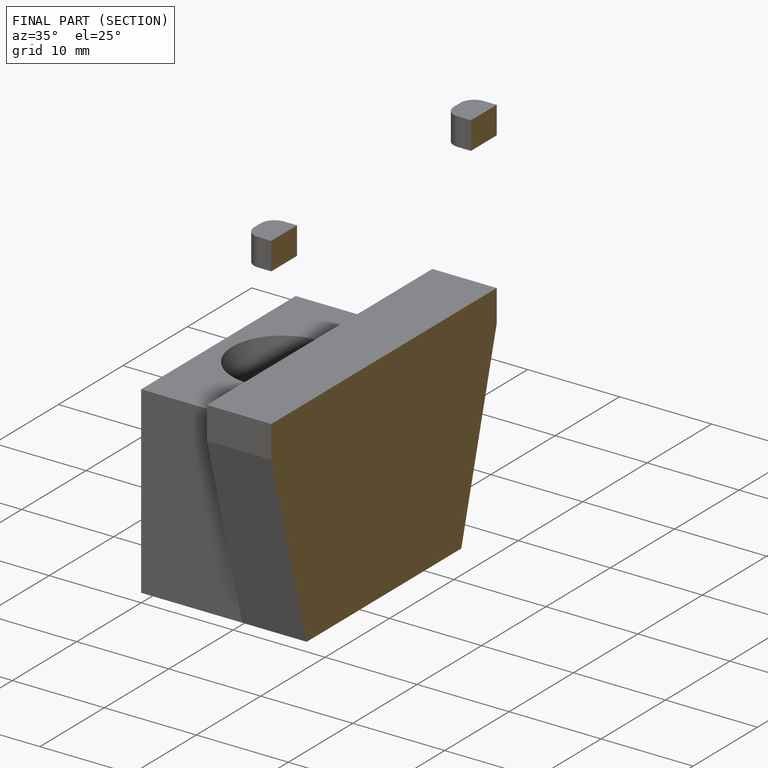
[diagram: finished part — half-section view (interior)]
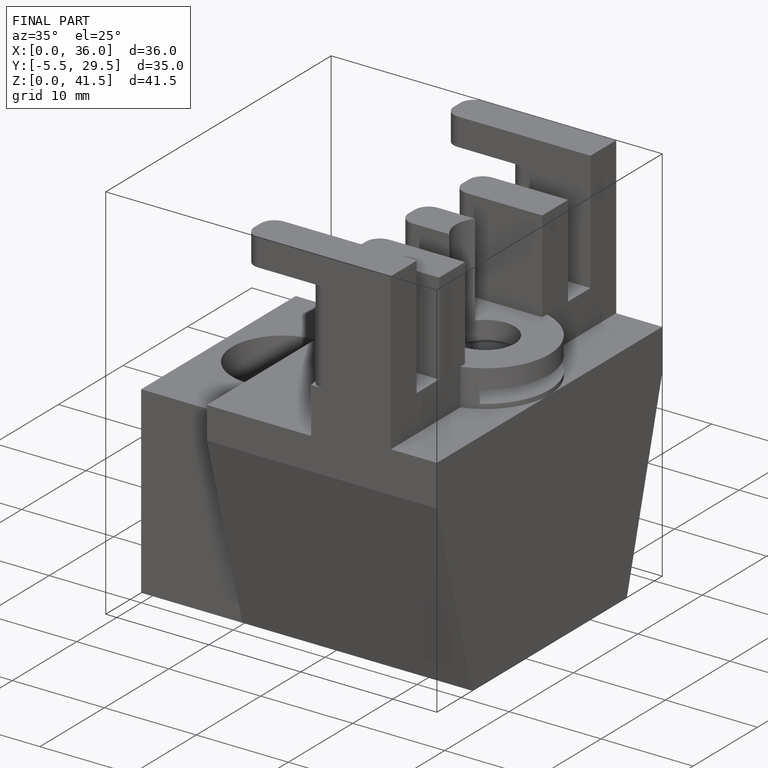
[diagram: finished part — iso view with bounding-box wireframe]
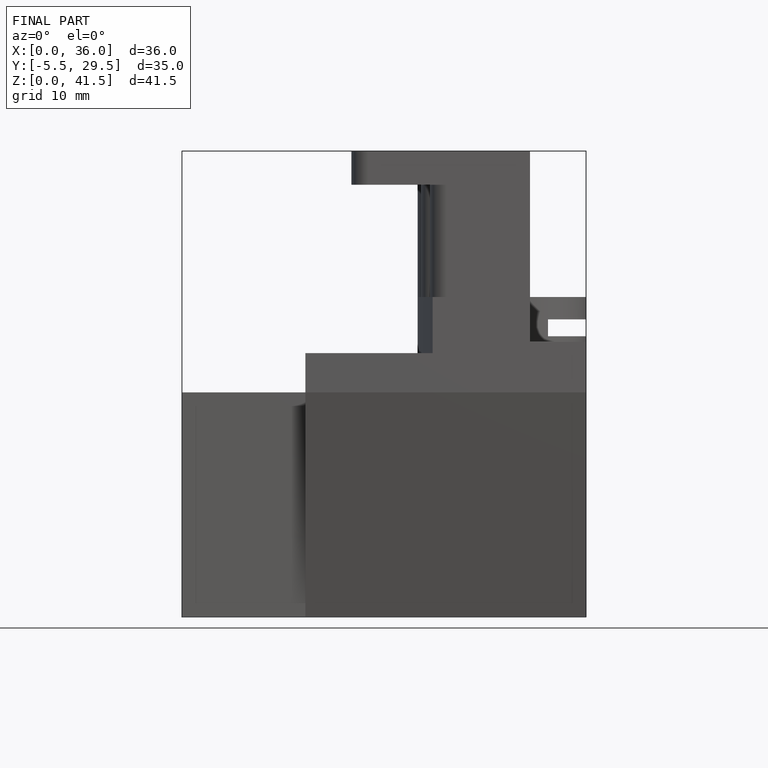
[diagram: finished part — front view with bounding-box wireframe]
